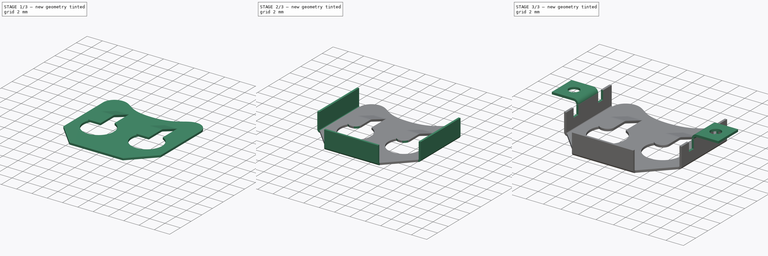
[diagram: build sequence overview — one tinted view per stage of 3, left to right]
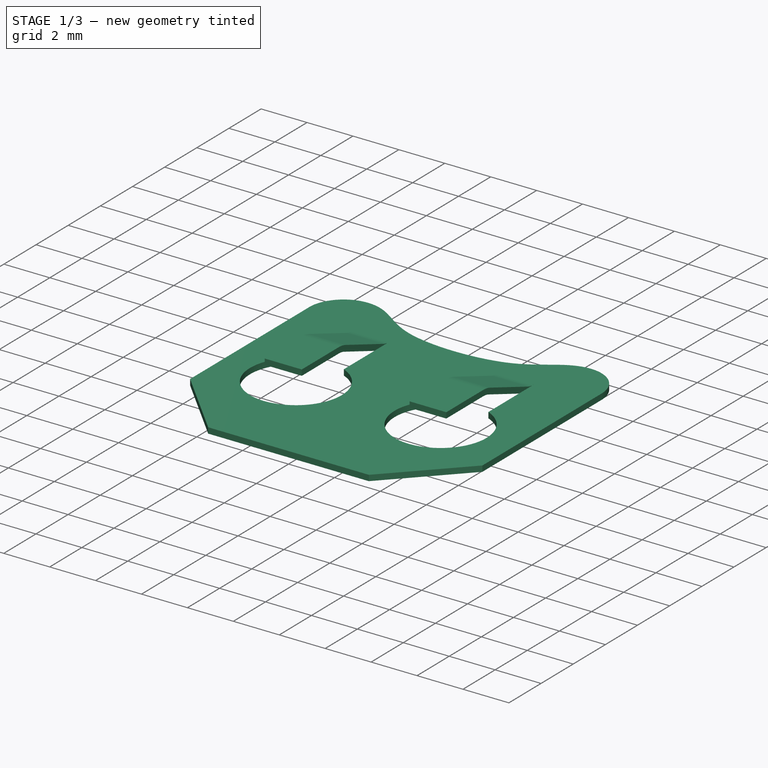
[diagram: stage 1 of 3 — iso view after this stage's code; geometry added in this stage tinted green]
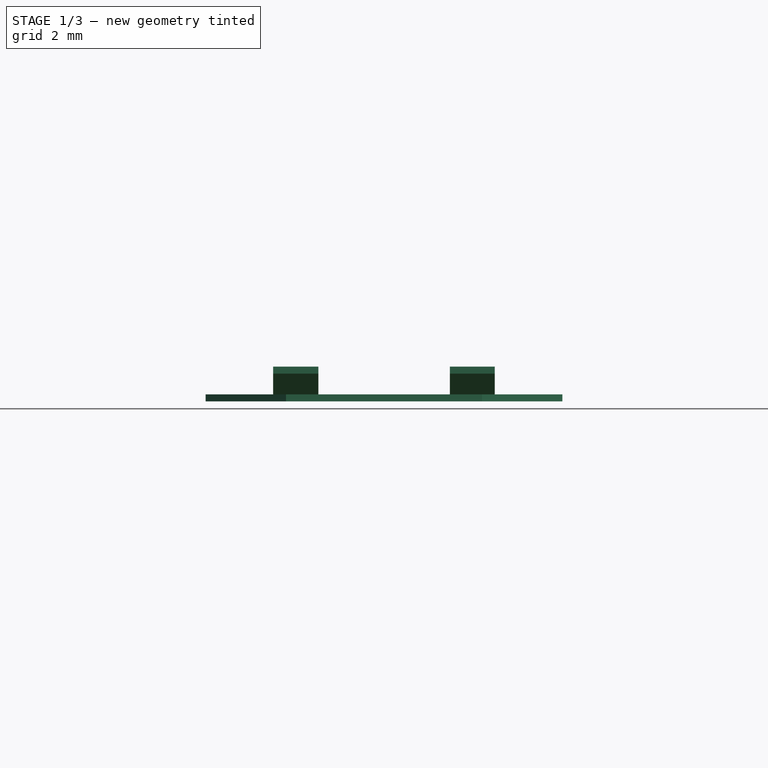
[diagram: stage 1 of 3 — front view after this stage's code; geometry added in this stage tinted green]
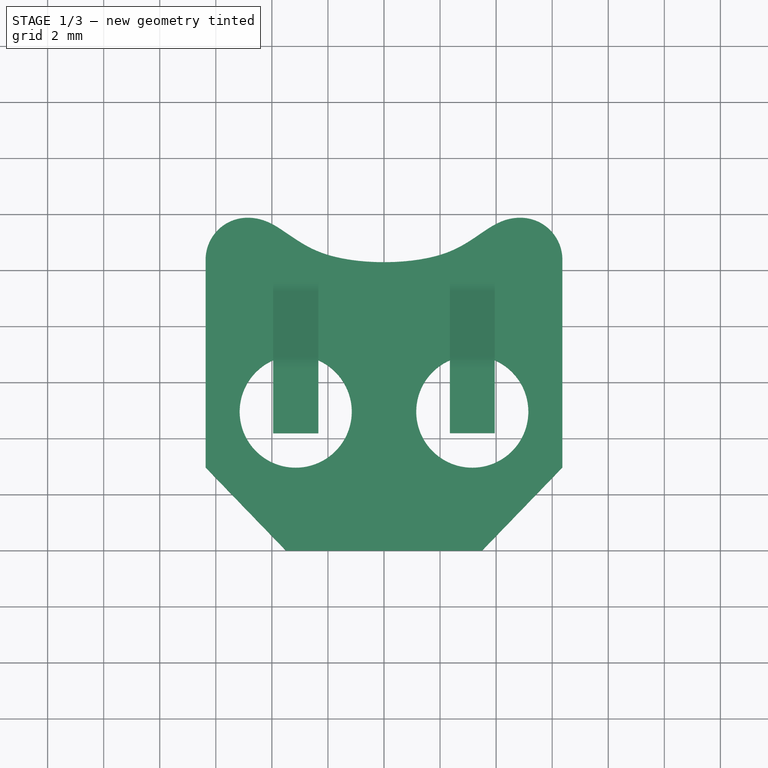
[diagram: stage 1 of 3 — top view after this stage's code; geometry added in this stage tinted green]
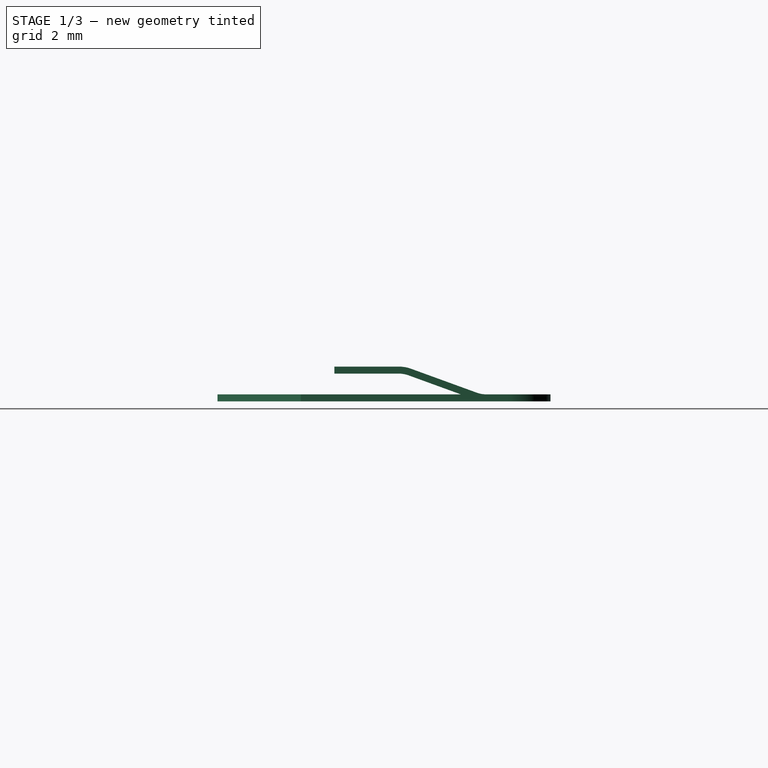
[diagram: stage 1 of 3 — right view after this stage's code; geometry added in this stage tinted green]
FCSTD DOCUMENT  (FreeCAD 0.18R15263 (Git))
Label: battery_holder
License: All rights reserved
LicenseURL: http://en.wikipedia.org/wiki/All_rights_reserved
objects: PartDesign::FeaturePython×5, Sketcher::SketchObject×2, PartDesign::Pad×1, PartDesign::Fillet×1, PartDesign::Pocket×1, PartDesign::Body×1
note: 13 computed .brp shape members not serialized (recipe doc carries the construction recipe); baked Part::Feature solids carry a one-line shape summary decoded from their .brp

FEATURE [Sketcher::SketchObject] Sketch
  MapMode = 5
  Support = -> [XY_Plane]
  sketch-geometry (29):
    g0: LineSegment StartX=6.365 StartY=10.38 StartZ=0 EndX=6.365 EndY=2.9684 EndZ=0
    g1: LineSegment StartX=3.49845 StartY=0 StartZ=0 EndX=-3.49845 EndY=0 EndZ=0
    g2: LineSegment StartX=-6.365 StartY=2.9684 StartZ=0 EndX=-6.365 EndY=10.38 EndZ=0
    g3: ArcOfCircle CenterX=-4.865 CenterY=10.38 CenterZ=0 NormalX=0 NormalY=0 NormalZ=1 AngleXU=0 Radius=1.5 StartAngle=1.5708 EndAngle=3.14159
    g4: ArcOfCircle CenterX=4.865 CenterY=10.38 CenterZ=0 NormalX=0 NormalY=0 NormalZ=1 AngleXU=0 Radius=1.5 StartAngle=1.035e-13 EndAngle=1.5708
    g5: LineSegment StartX=-6.365 StartY=2.9684 StartZ=0 EndX=-3.49845 EndY=0 EndZ=0
    g6: LineSegment StartX=3.49845 StartY=0 StartZ=0 EndX=6.365 EndY=2.9684 EndZ=0
    g7: LineSegment [constr] StartX=0 StartY=12.3809 StartZ=0 EndX=0 EndY=-0.828771 EndZ=0
    g8-g13: Circle [constr] x6 (B-spline internal-alignment scaffolding for g14; pole/knot coordinates omitted)
    g14: BSplineCurve PolesCount=6 KnotsCount=4 Degree=3 IsPeriodic=0
    g15-g18: GeomPoint [constr] x4 (B-spline internal-alignment scaffolding for g14; pole/knot coordinates omitted)
    g19: ArcOfCircle CenterX=-3.15 CenterY=4.96 CenterZ=0 NormalX=0 NormalY=0 NormalZ=1 AngleXU=0 Radius=2 StartAngle=1.98608 EndAngle=7.43869
    g20: ArcOfCircle CenterX=3.15 CenterY=4.96 CenterZ=0 NormalX=0 NormalY=0 NormalZ=1 AngleXU=0 Radius=2 StartAngle=1.98231 EndAngle=7.44246
    g21: LineSegment StartX=-3.95691 StartY=9.59 StartZ=0 EndX=-2.34309 EndY=9.59 EndZ=0
    g22: LineSegment StartX=-2.34309 StartY=9.59 StartZ=0 EndX=-2.34309 EndY=6.79 EndZ=0
    g23: LineSegment StartX=-3.95691 StartY=6.79 StartZ=0 EndX=-3.95691 EndY=9.59 EndZ=0
    g24: LineSegment StartX=2.35 StartY=9.59303 StartZ=0 EndX=3.95 EndY=9.59303 EndZ=0
    g25: LineSegment StartX=3.95 StartY=9.59303 StartZ=0 EndX=3.95 EndY=6.79303 EndZ=0
    g26: LineSegment StartX=2.35 StartY=6.79303 StartZ=0 EndX=2.35 EndY=9.59303 EndZ=0
    g27: LineSegment [constr] StartX=-3.15 StartY=4.96 StartZ=0 EndX=-3.15 EndY=13.0833 EndZ=0
    g28: LineSegment [constr] StartX=3.15 StartY=4.96 StartZ=0 EndX=3.15 EndY=12.7522 EndZ=0
  constraints (52):
    c: Horizontal(g1)
    c: Vertical(g0)
    c: Vertical(g2)
    c: Coincident(g8,g3) = 1.5708
    c: Tangent(g2,g3) = 1.5708
    c: Tangent(g0,g4) = 1.5708
    c: Radius(g3) = 1.5
    c: DistanceX(g8,g4) = 9.73
    c: DistanceY(g-1,g8) = 11.88
    c: Coincident(g5,g2)
    c: Coincident(g1,g5)
    c: Angle(g5,g-1) = 0.802851
    c: Coincident(g6,g1)
    c: Coincident(g6,g0)
    c: Equal(g6,g5)
    c: Symmetric(g3,g4,g7)
    c: Symmetric(g1,g1,g7)
    c: PointOnObject(g7,g-2)
    c: PointOnObject(g1,g-1)
    c: Radius(g8) = 0.3
    c: Equal(g8, g9-g13) x5
    c: InternalAlignment(g8-g13 -> g14) x6
    c: InternalAlignment(g15-g18 -> g14) x4
    c: Symmetric(g9,g12,g7)
    c: Symmetric(g10,g11,g7)
    c: Symmetric(g20,g19,g7)
    c: Equal(g19,g20)
    c: DistanceY(g-1,g19) = 4.96
    c: DistanceX(g19,g-1) = 3.15
    c: Radius(g19) = 2
    c: Coincident(g21,g22)
    c: Coincident(g23,g21)
    c: Coincident(g20,g26)
    c: Coincident(g25,g20)
    c: Coincident(g27,g19)
    c: Vertical(g27)
    c: Symmetric(g21,g21,g27)
    c: Coincident(g19,g22)
    c: Coincident(g19,g23)
    c: Coincident(g24,g25)
    c: Coincident(g24,g26)
    c: Vertical(g25)
    c: DistanceY(g-1,g21) = 9.59
    c: DistanceX(g24,g24) = 1.6
    c: Coincident(g28,g20)
    c: Vertical(g28)
    c: Symmetric(g24,g24,g28)
    c: Equal(g26,g22)
    c: Equal(g25,g26)
    c: Vertical(g22)
    c: Vertical(g23)
    c: DistanceY(g23,g23) = 2.8
FEATURE [PartDesign::Pad] Pad
  Length = 0.25
  Length2 = 100
  Profile = -> Sketch
  Type = 0
FEATURE [PartDesign::FeaturePython] Bend  # WARN: FeaturePython — macro-defined, semantics opaque (R4)
  AutoMiter = true
  BaseFeature = -> Pad
  BendType = 0
  LengthList = [2.5]
  RelifFactor = 0.7
  UseRelifFactor = false
  angle = 20
  baseObject = -> Pad [Face15,Face11]
  bendAList = [20]
  extend1 = 0
  extend2 = 0
  gap1 = 0
  gap2 = 0
  invert = false
  kfactor = 0.5
  length = 2.5
  miterangle1 = 0
  miterangle2 = 0
  offset = 0
  radius = 1
  reliefType = 0
  reliefd = 1
  reliefw = 0.8
  sketchflip = false
  sketchinvert = false
  unfold = false
FEATURE [PartDesign::FeaturePython] Bend001  # WARN: FeaturePython — macro-defined, semantics opaque (R4)
  AutoMiter = true
  BaseFeature = -> Bend
  BendType = 0
  LengthList = [2.3]
  RelifFactor = 0.7
  UseRelifFactor = false
  angle = -20
  baseObject = -> Bend [Face1,Face33]
  bendAList = [-20]
  extend1 = 0
  extend2 = 0
  gap1 = 0
  gap2 = 0
  invert = false
  kfactor = 0.5
  length = 2.3
  miterangle1 = 0
  miterangle2 = 0
  offset = 0
  radius = 1
  reliefType = 0
  reliefd = 1
  reliefw = 0.8
  sketchflip = false
  sketchinvert = false
  unfold = false
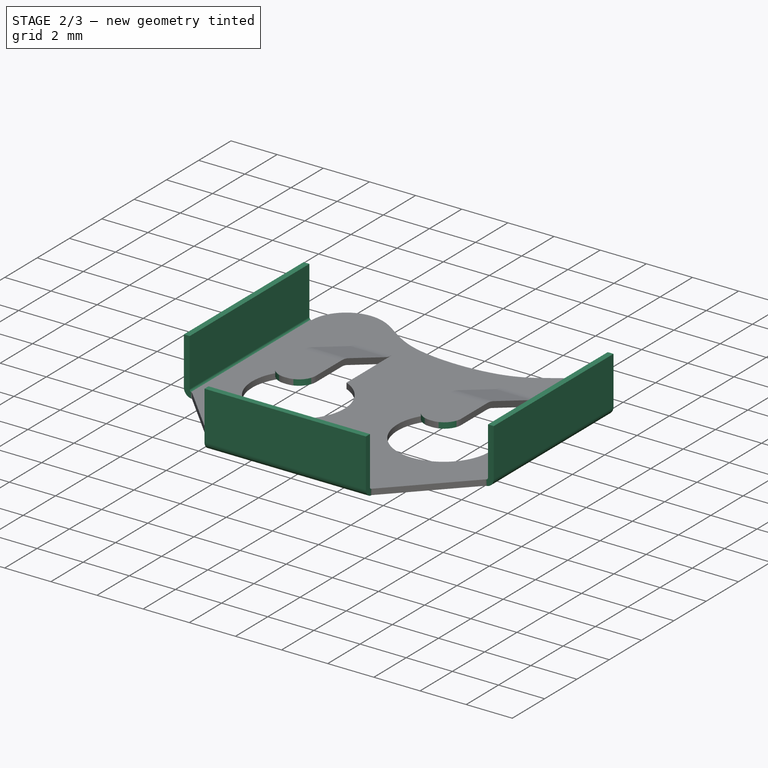
[diagram: stage 2 of 3 — iso view after this stage's code; geometry added in this stage tinted green]
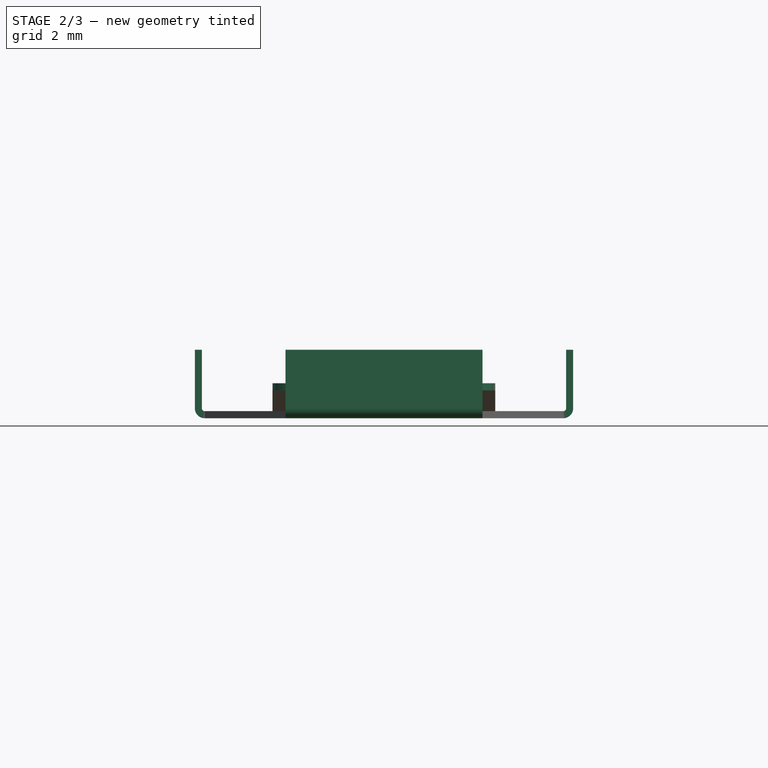
[diagram: stage 2 of 3 — front view after this stage's code; geometry added in this stage tinted green]
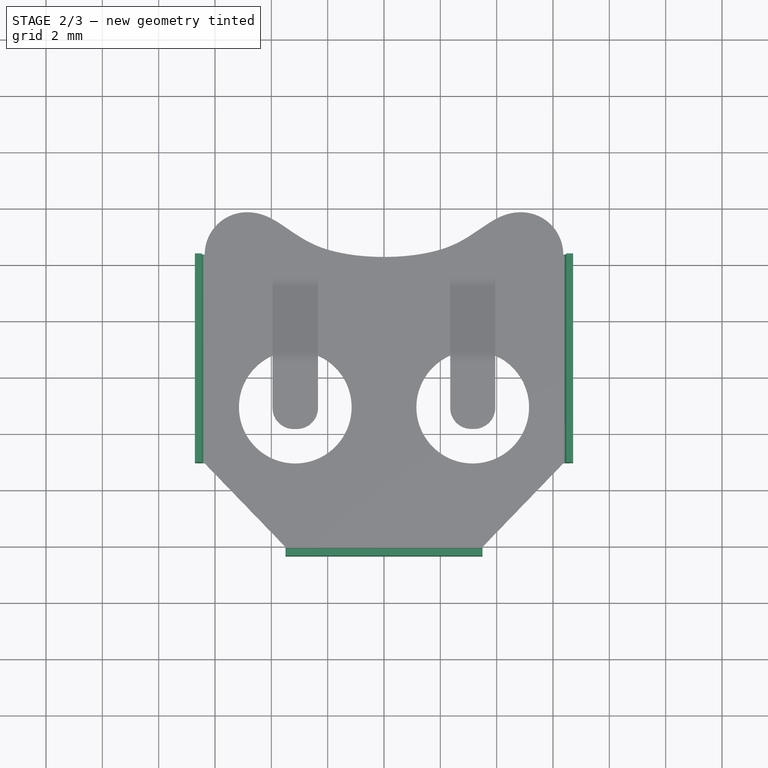
[diagram: stage 2 of 3 — top view after this stage's code; geometry added in this stage tinted green]
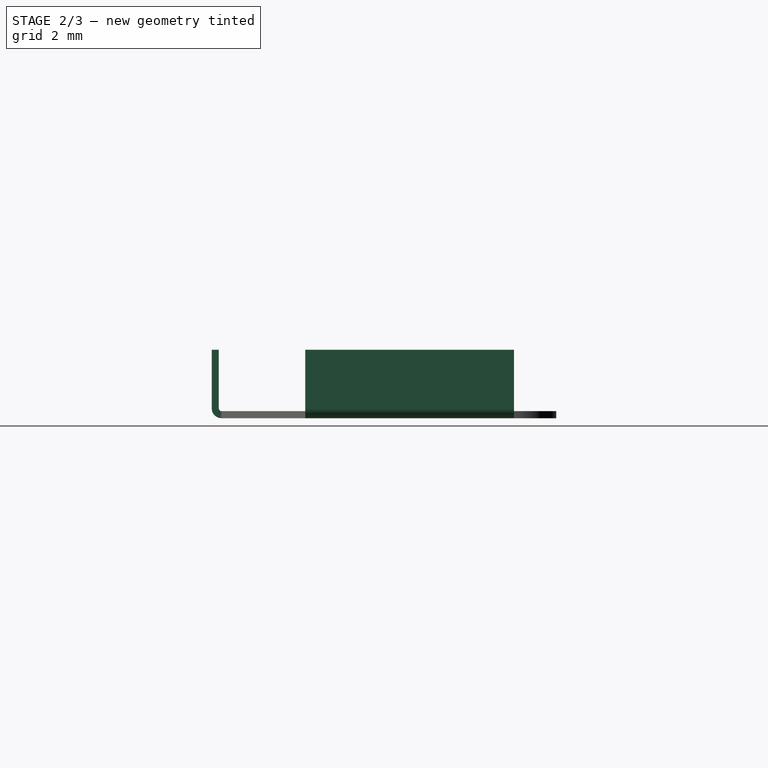
[diagram: stage 2 of 3 — right view after this stage's code; geometry added in this stage tinted green]
FEATURE [PartDesign::Fillet] Fillet
  Base = -> Bend001 [Edge1,Edge2,Edge114,Edge116]
  BaseFeature = -> Bend001
  Radius = 0.75
FEATURE [PartDesign::FeaturePython] Bend002  # WARN: FeaturePython — macro-defined, semantics opaque (R4)
  AutoMiter = true
  BaseFeature = -> Fillet
  BendType = 0
  LengthList = [2.08]
  RelifFactor = 0.7
  UseRelifFactor = false
  angle = 90
  baseObject = -> Fillet [Face32,Face29,Face28]
  bendAList = [90]
  extend1 = 0
  extend2 = 0
  gap1 = 0
  gap2 = 0
  invert = false
  kfactor = 0.5
  length = 2.08
  miterangle1 = 0
  miterangle2 = 0
  offset = 0
  radius = 0.1
  reliefType = 0
  reliefd = 1
  reliefw = 0.8
  sketchflip = false
  sketchinvert = false
  unfold = false
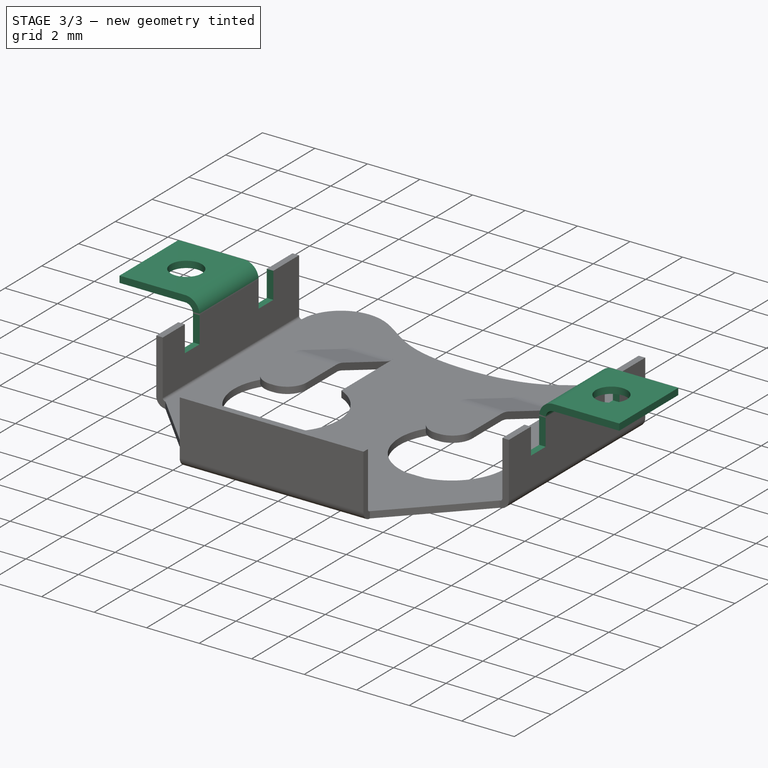
[diagram: stage 3 of 3 — iso view after this stage's code; geometry added in this stage tinted green]
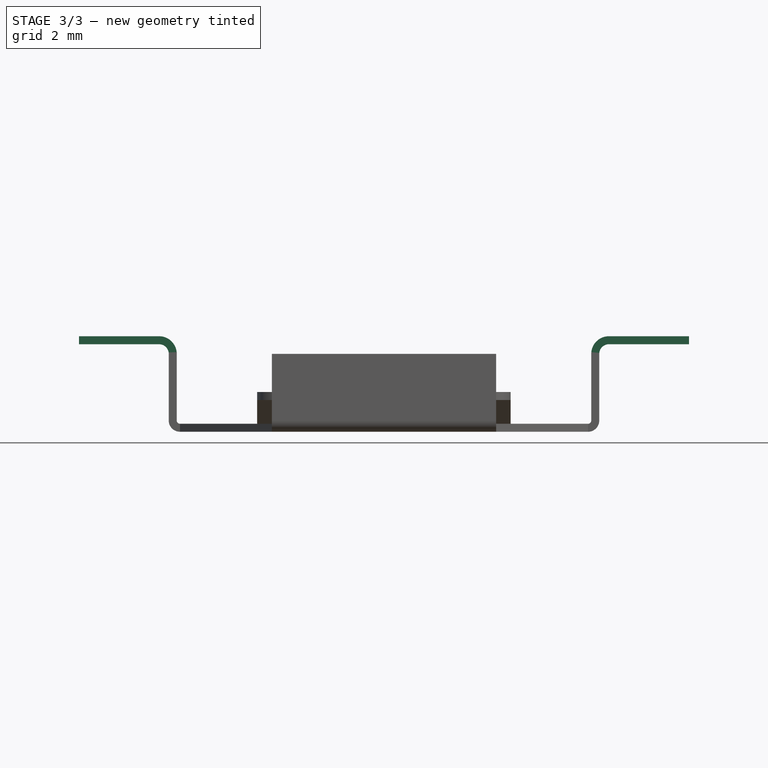
[diagram: stage 3 of 3 — front view after this stage's code; geometry added in this stage tinted green]
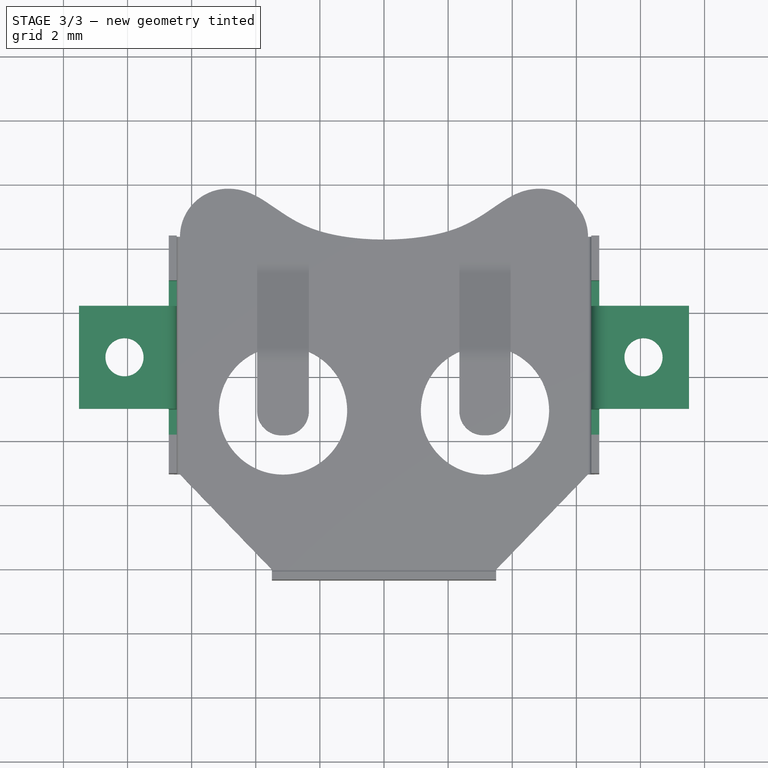
[diagram: stage 3 of 3 — top view after this stage's code; geometry added in this stage tinted green]
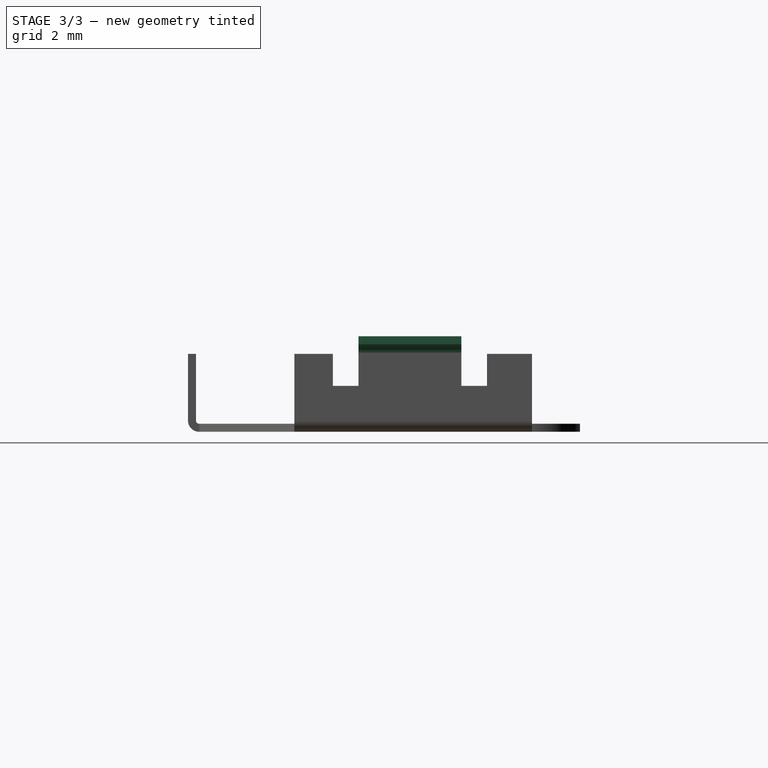
[diagram: stage 3 of 3 — right view after this stage's code; geometry added in this stage tinted green]
FEATURE [PartDesign::FeaturePython] Bend003  # WARN: FeaturePython — macro-defined, semantics opaque (R4)
  AutoMiter = true
  BaseFeature = -> Bend002
  BendType = 0
  LengthList = [2.5]
  RelifFactor = 0.7
  UseRelifFactor = false
  angle = 90
  baseObject = -> Bend002 [Face59]
  bendAList = [90]
  extend1 = 0
  extend2 = 0
  gap1 = 2.2
  gap2 = 2
  invert = true
  kfactor = 0.5
  length = 2.5
  miterangle1 = 0
  miterangle2 = 0
  offset = 0
  radius = 0.3
  reliefType = 0
  reliefd = 1
  reliefw = 0.8
  sketchflip = false
  sketchinvert = false
  unfold = false
FEATURE [PartDesign::FeaturePython] Bend004  # WARN: FeaturePython — macro-defined, semantics opaque (R4)
  AutoMiter = true
  BaseFeature = -> Bend003
  BendType = 0
  LengthList = [2.5]
  RelifFactor = 0.7
  UseRelifFactor = false
  angle = 90
  baseObject = -> Bend003 [Face74]
  bendAList = [90]
  extend1 = 0
  extend2 = 0
  gap1 = 2
  gap2 = 2.2
  invert = true
  kfactor = 0.5
  length = 2.5
  miterangle1 = 0
  miterangle2 = 0
  offset = 0
  radius = 0.3
  reliefType = 0
  reliefd = 1
  reliefw = 0.8
  sketchflip = false
  sketchinvert = false
  unfold = false
FEATURE [Sketcher::SketchObject] Sketch001
  ExternalGeometry = -> [Bend004]
  MapMode = 5
  Placement = pos=(3e-16,0,2.73) rot=(1,0,0;3.14159rad)
  Support = -> [Bend004]
  sketch-geometry (3):
    g0: Circle CenterX=-8.095 CenterY=-6.5742 CenterZ=0 NormalX=0 NormalY=0 NormalZ=1 AngleXU=0 Radius=0.595
    g1: LineSegment [constr] StartX=-10.0595 StartY=-6.5742 StartZ=0 EndX=-4.62818 EndY=-6.5742 EndZ=0
    g2: Circle CenterX=8.095 CenterY=-6.5742 CenterZ=0 NormalX=0 NormalY=0 NormalZ=1 AngleXU=0 Radius=0.595
  constraints (6):
    c: Diameter(g0) = 1.19
    c: PointOnObject(g0,g1)
    c: Symmetric(g-3,g-3,g1)
    c: Distance(g0,g-3) = 1.42
    c: Equal(g2,g0)
    c: Symmetric(g0,g2,g-2)
FEATURE [PartDesign::Pocket] Pocket
  BaseFeature = -> Bend004
  Length = 5
  Length2 = 100
  Profile = -> Sketch001
  Type = 1
FEATURE [PartDesign::Body] Body
  Group = -> [Sketch,Pad,Bend,Bend001,Fillet,Bend002,Bend003,Bend004,Sketch001,Pocket]
  Origin = -> Origin
  Placement = pos=(0,0,0) rot=(0,1,0;3.14159rad)
  Tip = -> Pocket
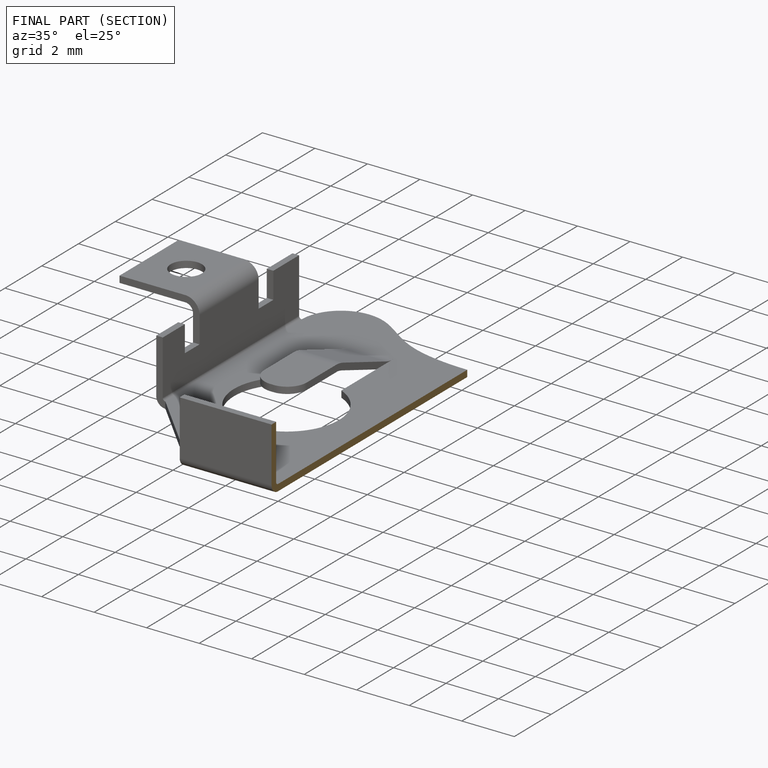
[diagram: finished part — half-section view (interior)]
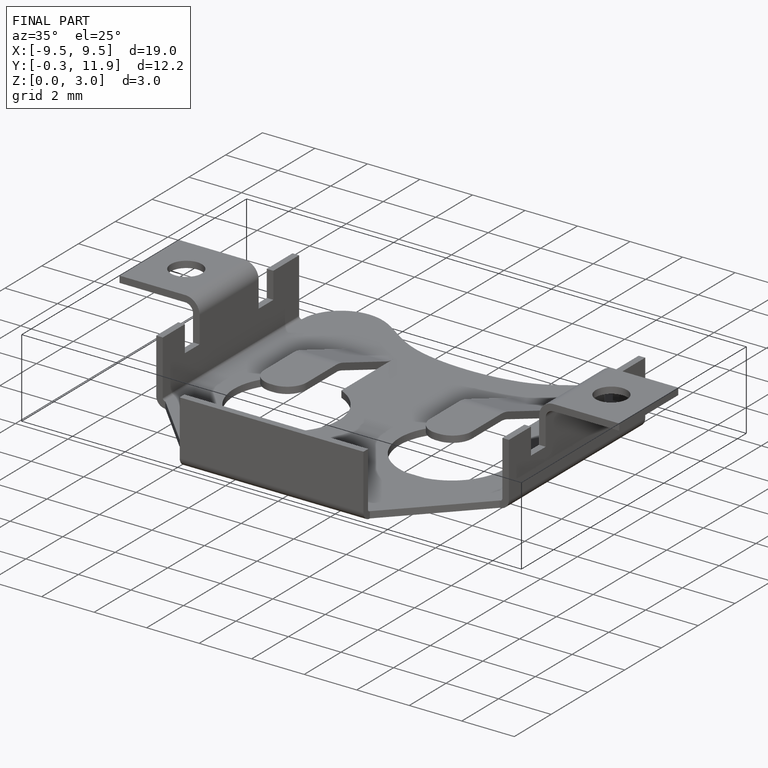
[diagram: finished part — iso view with bounding-box wireframe]
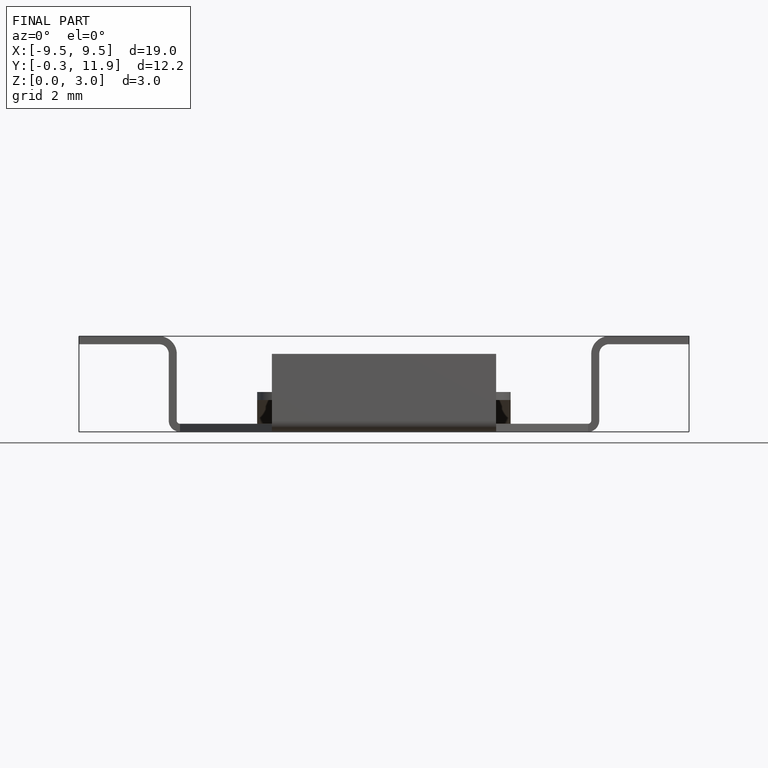
[diagram: finished part — front view with bounding-box wireframe]
